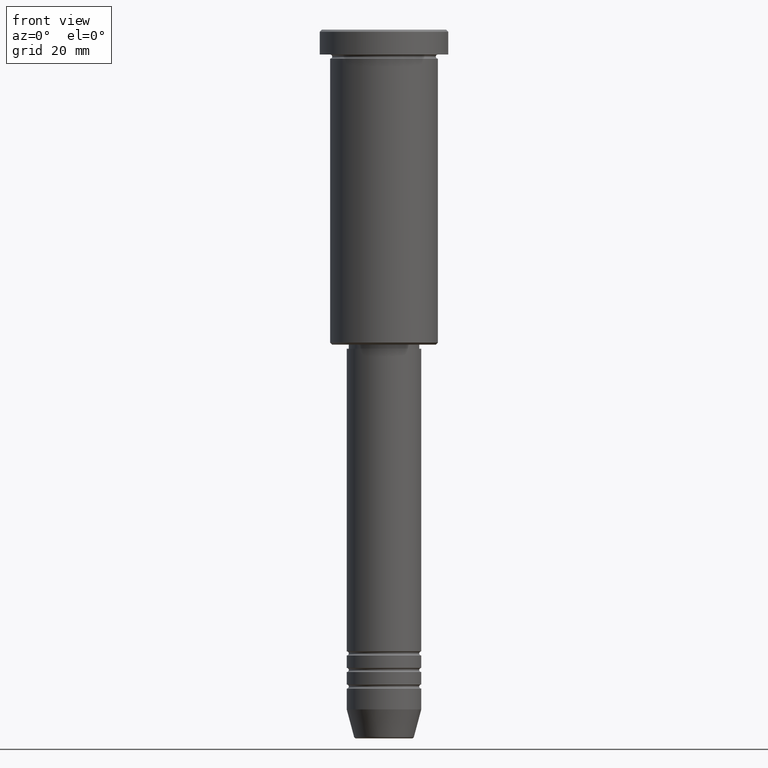
[diagram: clean part render]
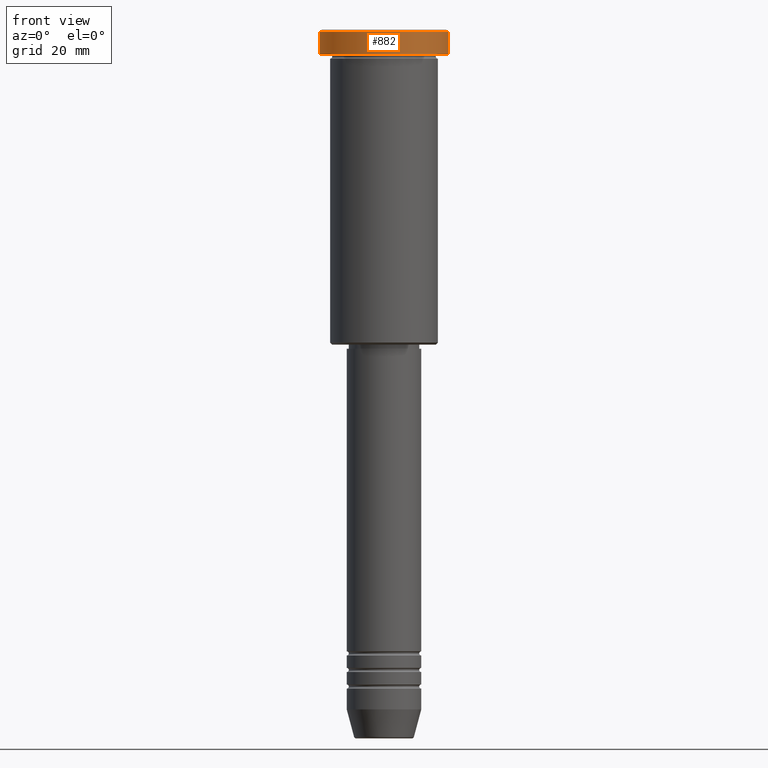
[diagram: same view with one face highlighted and labeled with its STEP entity id]
A machine part, front view. The second image highlights one B-rep face of the part: STEP entity #882.
In plain terms, the highlighted cylindrical surface (partial cylindrical patch) has radius 15.5 mm, axis along (-0, -0, 1).
Its self-contained STEP definition (entity closure, byte-faithful):
#32 = CARTESIAN_POINT ( 'NONE',  ( -15.50000000000000000, 1.898202538678397557E-15, -0.5000000000000125455 ) ) ;
#82 = DIRECTION ( 'NONE',  ( -0.000000000000000000, -0.000000000000000000, 1.000000000000000000 ) ) ;
#104 = DIRECTION ( 'NONE',  ( -0.000000000000000000, -0.000000000000000000, 1.000000000000000000 ) ) ;
#117 = DIRECTION ( 'NONE',  ( -0.000000000000000000, -0.000000000000000000, 1.000000000000000000 ) ) ;
#205 = CIRCLE ( 'NONE', #1101, 15.50000000000000000 ) ;
#208 = CARTESIAN_POINT ( 'NONE',  ( 15.50000000000000000, 0.000000000000000000, 0.000000000000000000 ) ) ;
#247 = LINE ( 'NONE', #208, #1144 ) ;
#263 = VECTOR ( 'NONE', #82, 1000.000000000000000 ) ;
#271 = ORIENTED_EDGE ( 'NONE', *, *, #734, .T. ) ;
#292 = VERTEX_POINT ( 'NONE', #572 ) ;
#297 = DIRECTION ( 'NONE',  ( 1.000000000000000000, 0.000000000000000000, 0.000000000000000000 ) ) ;
#351 = CARTESIAN_POINT ( 'NONE',  ( -15.50000000000000000, 1.898202538678397557E-15, 0.000000000000000000 ) ) ;
#364 = CIRCLE ( 'NONE', #553, 15.50000000000000000 ) ;
#387 = VERTEX_POINT ( 'NONE', #32 ) ;
#432 = EDGE_CURVE ( 'NONE', #1151, #387, #205, .T. ) ;
#553 = AXIS2_PLACEMENT_3D ( 'NONE', #923, #104, #297 ) ;
#572 = CARTESIAN_POINT ( 'NONE',  ( 15.50000000000000000, 0.000000000000000000, -5.999999999999995559 ) ) ;
#583 = EDGE_CURVE ( 'NONE', #848, #387, #1166, .T. ) ;
#601 = CARTESIAN_POINT ( 'NONE',  ( 0.000000000000000000, 0.000000000000000000, 0.000000000000000000 ) ) ;
#631 = CYLINDRICAL_SURFACE ( 'NONE', #653, 15.50000000000000000 ) ;
#653 = AXIS2_PLACEMENT_3D ( 'NONE', #601, #664, #733 ) ;
#664 = DIRECTION ( 'NONE',  ( -0.000000000000000000, -0.000000000000000000, 1.000000000000000000 ) ) ;
#691 = DIRECTION ( 'NONE',  ( 0.000000000000000000, 0.000000000000000000, -1.000000000000000000 ) ) ;
#733 = DIRECTION ( 'NONE',  ( 1.000000000000000000, 0.000000000000000000, 0.000000000000000000 ) ) ;
#734 = EDGE_CURVE ( 'NONE', #848, #292, #364, .T. ) ;
#766 = CARTESIAN_POINT ( 'NONE',  ( 0.000000000000000000, 0.000000000000000000, -0.5000000000000125455 ) ) ;
#848 = VERTEX_POINT ( 'NONE', #1086 ) ;
#849 = ORIENTED_EDGE ( 'NONE', *, *, #432, .T. ) ;
#882 = ADVANCED_FACE ( 'NONE', ( #1080 ), #631, .T. ) ;
#923 = CARTESIAN_POINT ( 'NONE',  ( 0.000000000000000000, 0.000000000000000000, -5.999999999999995559 ) ) ;
#967 = ORIENTED_EDGE ( 'NONE', *, *, #1165, .T. ) ;
#985 = DIRECTION ( 'NONE',  ( 1.000000000000000000, 0.000000000000000000, 0.000000000000000000 ) ) ;
#1066 = CARTESIAN_POINT ( 'NONE',  ( 15.50000000000000000, 0.000000000000000000, -0.5000000000000125455 ) ) ;
#1080 = FACE_OUTER_BOUND ( 'NONE', #1111, .T. ) ;
#1086 = CARTESIAN_POINT ( 'NONE',  ( -15.50000000000000000, 1.898202538678397557E-15, -5.999999999999995559 ) ) ;
#1101 = AXIS2_PLACEMENT_3D ( 'NONE', #766, #691, #985 ) ;
#1111 = EDGE_LOOP ( 'NONE', ( #1132, #271, #967, #849 ) ) ;
#1132 = ORIENTED_EDGE ( 'NONE', *, *, #583, .F. ) ;
#1144 = VECTOR ( 'NONE', #117, 1000.000000000000000 ) ;
#1151 = VERTEX_POINT ( 'NONE', #1066 ) ;
#1165 = EDGE_CURVE ( 'NONE', #292, #1151, #247, .T. ) ;
#1166 = LINE ( 'NONE', #351, #263 ) ;